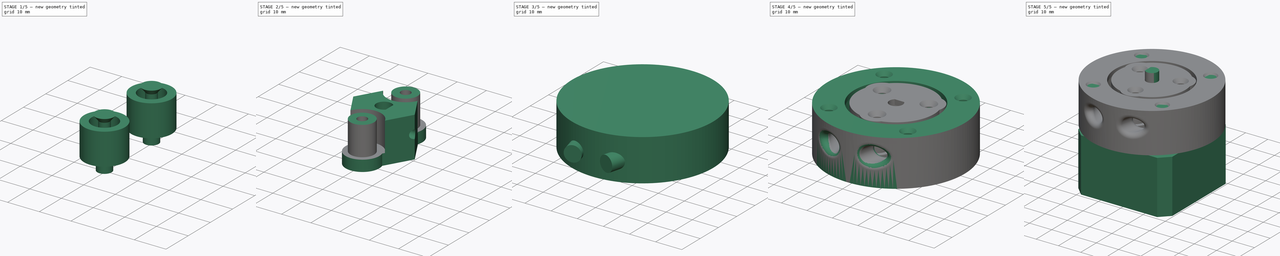
[diagram: build sequence overview — one tinted view per stage of 5, left to right]
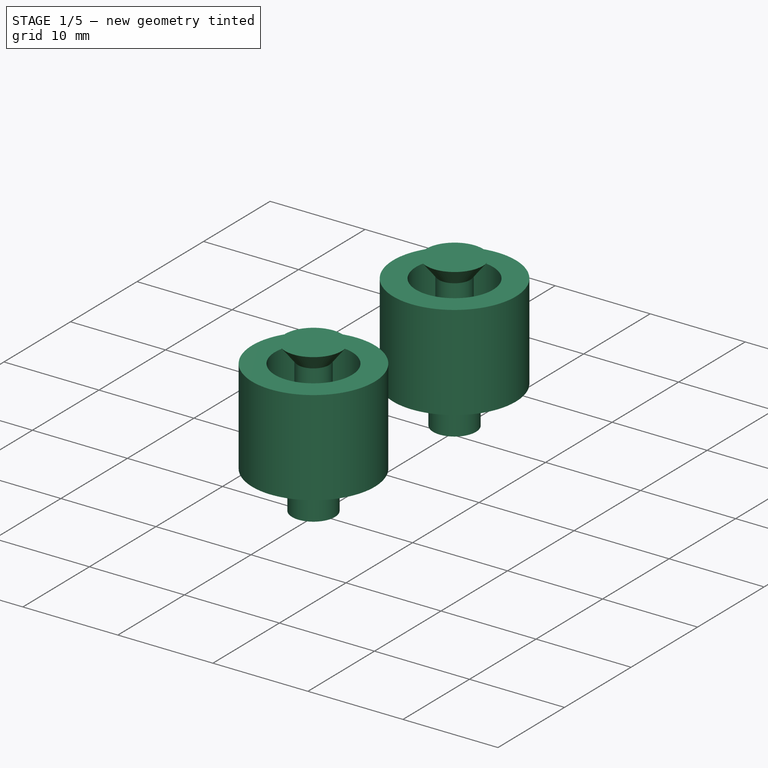
[diagram: stage 1 of 5 — iso view after this stage's code; geometry added in this stage tinted green]
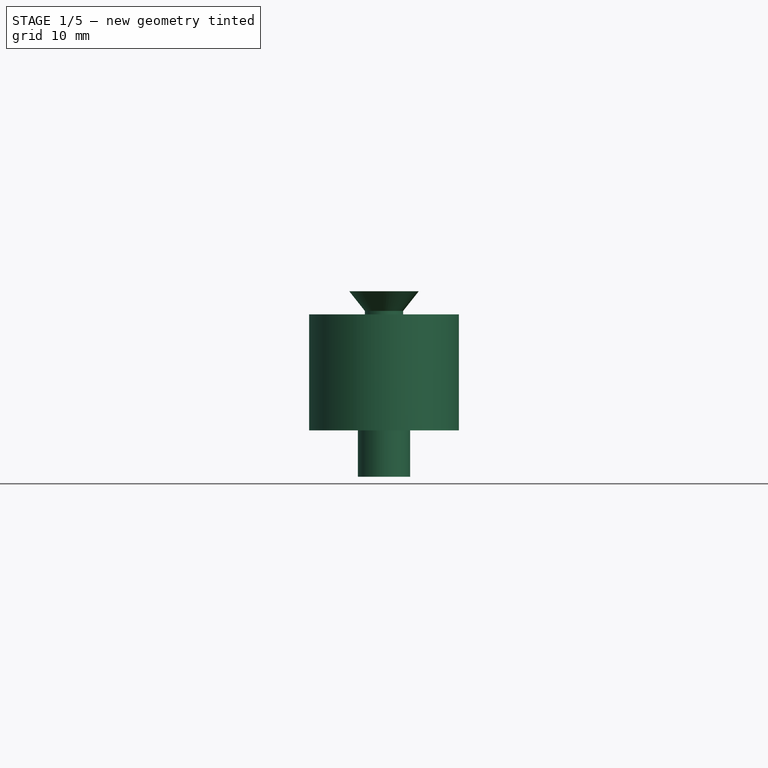
[diagram: stage 1 of 5 — front view after this stage's code; geometry added in this stage tinted green]
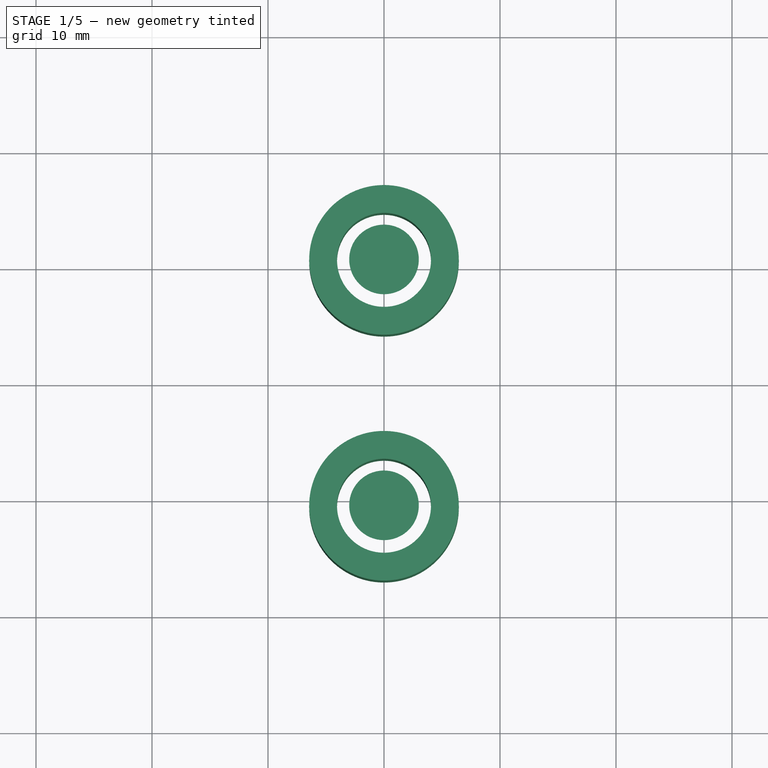
[diagram: stage 1 of 5 — top view after this stage's code; geometry added in this stage tinted green]
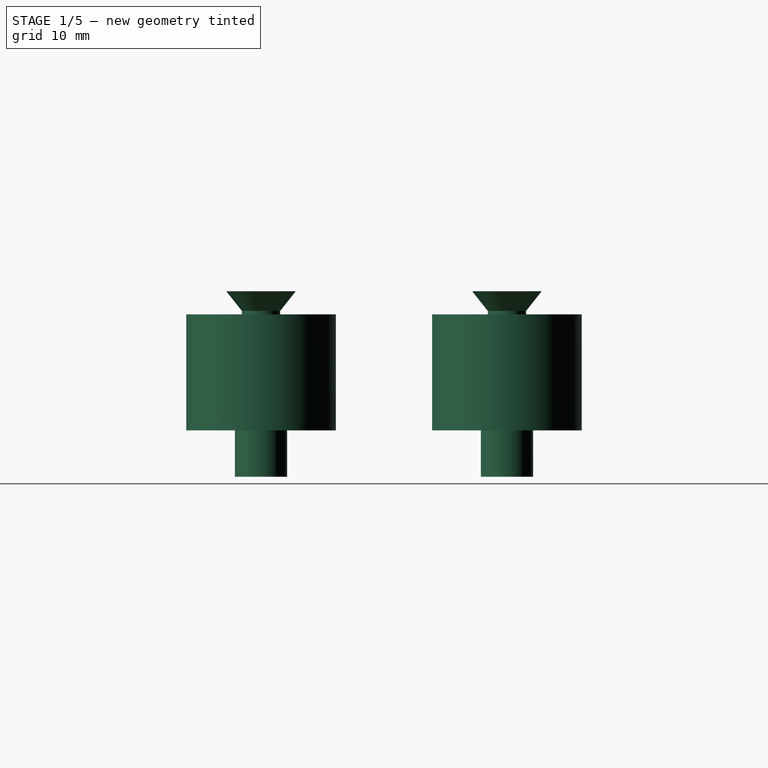
[diagram: stage 1 of 5 — right view after this stage's code; geometry added in this stage tinted green]
FCSTD DOCUMENT  (FreeCAD 0.19R24291 (Git))
Label: Peristaltic Pump 2 bearing
License: All rights reserved
LicenseURL: http://en.wikipedia.org/wiki/All_rights_reserved
objects: PartDesign::AdditiveCylinder×10, Part::Feature×10, PartDesign::Body×8, Part::Cut×6, PartDesign::SubtractiveCylinder×4, Sketcher::SketchObject×4, Part::MultiFuse×4, PartDesign::Pad×3, Part::FeaturePython×3, PartDesign::AdditiveCone×2, PartDesign::PolarPattern×2, PartDesign::AdditiveBox×1, PartDesign::Chamfer×1, PartDesign::MultiTransform×1, PartDesign::SubtractiveBox×1, Part::Cylinder×1, Part::Mirroring×1, Part::Fillet×1
note: 82 computed .brp shape members not serialized (recipe doc carries the construction recipe); baked Part::Feature solids carry a one-line shape summary decoded from their .brp

FEATURE [PartDesign::AdditiveCylinder] Cylinder003
  Angle = 360
  AttacherType = Attacher::AttachEngine3D
  AttachmentOffset = pos=(0,-10.6,0) rot=(0,0,1;0rad)
  Height = 10
  MapMode = 2
  Placement = pos=(0,-10.6,0) rot=(0,0,1;0rad)
  Radius = 6.45
  Support = -> [X_Axis001]
FEATURE [PartDesign::SubtractiveCylinder] Cylinder004
  Angle = 360
  AttacherType = Attacher::AttachEngine3D
  BaseFeature = -> Cylinder003
  Height = 10
  MapMode = 2
  Placement = pos=(0,-10.6,0) rot=(0,0,1;0rad)
  Radius = 4.05
  Support = -> [Cylinder003]
FEATURE [PartDesign::Body] Body
  Group = -> [Cylinder,Cylinder001,Box,Chamfer,Cylinder002,Cone,MultiTransform,PolarPattern,Box001]
  Origin = -> Origin
  Placement = pos=(0,0,1) rot=(0,0,-1;1.5708rad)
  Tip = -> Box001
FEATURE [Sketcher::SketchObject] Sketch003
  AttachmentOffset = pos=(0,0,15) rot=(0,0,1;0rad)
  FullyConstrained = true
  MapMode = 5
  Placement = pos=(0,0,15) rot=(0,0,1;0rad)
  Support = -> [XY_Plane004]
  sketch-geometry (9):
    g0: ArcOfCircle CenterX=0 CenterY=0 CenterZ=0 NormalX=0 NormalY=0 NormalZ=1 AngleXU=0 Radius=15 StartAngle=2.90419 EndAngle=4.4262
    g1: ArcOfCircle CenterX=0 CenterY=-10.5 CenterZ=0 NormalX=0 NormalY=0 NormalZ=1 AngleXU=0 Radius=5.75 StartAngle=3.88459 EndAngle=5.54018
    g2: ArcOfCircle CenterX=-9.09327 CenterY=5.25 CenterZ=0 NormalX=0 NormalY=0 NormalZ=1 AngleXU=0 Radius=5.75 StartAngle=1.7902 EndAngle=3.44579
    g3: ArcOfCircle CenterX=9.09327 CenterY=5.25 CenterZ=0 NormalX=0 NormalY=0 NormalZ=1 AngleXU=0 Radius=5.75 StartAngle=5.97899 EndAngle=7.63458
    g4: LineSegment StartX=-9.09327 StartY=5.25 StartZ=0 EndX=0 EndY=-10.5 EndZ=0
    g5: LineSegment StartX=0 StartY=-10.5 StartZ=0 EndX=9.09327 EndY=5.25 EndZ=0
    g6: LineSegment StartX=9.09327 StartY=5.25 StartZ=0 EndX=-9.09327 EndY=5.25 EndZ=0
    g7: ArcOfCircle CenterX=0 CenterY=0 CenterZ=0 NormalX=0 NormalY=0 NormalZ=1 AngleXU=0 Radius=15 StartAngle=0.809792 EndAngle=2.3318
    g8: ArcOfCircle CenterX=0 CenterY=0 CenterZ=0 NormalX=0 NormalY=0 NormalZ=1 AngleXU=0 Radius=15 StartAngle=4.99858 EndAngle=6.52059
  constraints (26):
    c: Coincident(g0,g-1)
    c: PointOnObject(g1,g-2)
    c: Equal(g1,g3)
    c: Equal(g3,g2)
    c: DistanceY(g1,g-1) = 10.5
    c: Distance(g-1,g3) = 10.5
    c: Symmetric(g2,g3,g-2)
    c: Coincident(g4,g2)
    c: Coincident(g4,g1)
    c: Coincident(g5,g4)
    c: Coincident(g5,g3)
    c: Coincident(g6,g5)
    c: Coincident(g6,g4)
    c: Equal(g4,g6)
    c: Radius(g0) = 15
    c: Radius(g3) = 5.75
    c: Coincident(g0,g2)
    c: Coincident(g7,g2)
    c: Equal(g0,g7)
    c: Coincident(g8,g3)
    c: Coincident(g7,g3)
    c: Coincident(g0,g7)
    c: Equal(g0,g8)
    c: Coincident(g0,g1)
    c: Coincident(g8,g1)
    c: Coincident(g0,g8)
FEATURE [PartDesign::Pad] Pad002
  Direction = (1,1,1)
  Length = 2
  Length2 = 100
  Profile = -> Sketch003
  Type = 0
FEATURE [PartDesign::AdditiveCylinder] Cylinder011
  Angle = 360
  AttacherType = Attacher::AttachEngine3D
  AttachmentOffset = pos=(0,-10.6,-15.7) rot=(0,0,1;0rad)
  Height = 14
  MapMode = 5
  Placement = pos=(0,-10.6,1.3) rot=(0,0,1;0rad)
  Radius = 1.65
  Support = -> [Pad002]
FEATURE [PartDesign::AdditiveCone] Cone001
  Angle = 360
  AttacherType = Attacher::AttachEngine3D
  BaseFeature = -> Cylinder011
  Height = 1.7
  MapMode = 5
  Placement = pos=(0,-10.6,15.3) rot=(0,0,1;0rad)
  Radius1 = 1.65
  Radius2 = 3
  Support = -> [Cylinder011]
FEATURE [Part::Feature] Body001012002
  Placement = pos=(0,0,5) rot=(0,0,1;0rad)
  shape: bbox 12.25 x 12.25 x 10 mm, 4 faces (baked)
FEATURE [Part::FeaturePython] Array  label="Bearings"  # Draft array (typed FeaturePython)
  Angle = 360
  ArrayType = 1
  Axis = (0,0,1)
  Base = -> Body001012002
  Center = (0,0,0)
  Count = 3
  ExpandArray = false
  Fuse = false
  IntervalAxis = (0,0,0)
  IntervalX = (50,0,0)
  IntervalY = (0,50,0)
  IntervalZ = (0,0,50)
  NumberCircles = 3
  NumberPolar = 3
  NumberX = 2
  NumberY = 2
  NumberZ = 1
  PlacementList = 3 placements: [(0,0,5),(0,0,5),(0,0,5)]
  RadialDistance = 50
  ScaleList = (3) [(1,1,1),(1,1,1),(1,1,1)]
  Symmetry = 1
  TangentialDistance = 25
FEATURE [PartDesign::AdditiveCylinder] Cylinder013
  Angle = 360
  AttacherType = Attacher::AttachEngine3D
  AttachmentOffset = pos=(0,0,-0.3) rot=(0,0,1;0rad)
  BaseFeature = -> Cone001
  Height = 4.75
  MapMode = 11
  Placement = pos=(0,-10.6,1) rot=(0,0,1;1.5708rad)
  Radius = 2.25
  Support = -> [Cone001]
FEATURE [PartDesign::Body] Body001012003
  Group = -> [Cylinder014,Cylinder015]
  Origin = -> Origin007
  Placement = pos=(0,0,0) rot=(0,0,1;4.71239rad)
  Tip = -> Cylinder015
FEATURE [Part::MultiFuse] Fusion001
  Refine = true
  Shapes = -> [Body001,Body001013]
FEATURE [Part::FeaturePython] Array003  # Draft array (typed FeaturePython)
  Angle = 360
  ArrayType = 1
  Axis = (0,0,1)
  Base = -> Fusion001
  Center = (0,0,0)
  Count = 2
  ExpandArray = false
  Fuse = false
  IntervalAxis = (0,0,0)
  IntervalX = (50,0,0)
  IntervalY = (0,50,0)
  IntervalZ = (0,0,50)
  NumberCircles = 3
  NumberPolar = 2
  NumberX = 2
  NumberY = 2
  NumberZ = 1
  PlacementList = 2 placements: [(0,0,0),(0,0,0)]
  RadialDistance = 50
  ScaleList = (2) [(1,1,1),(1,1,1)]
  Symmetry = 1
  TangentialDistance = 25
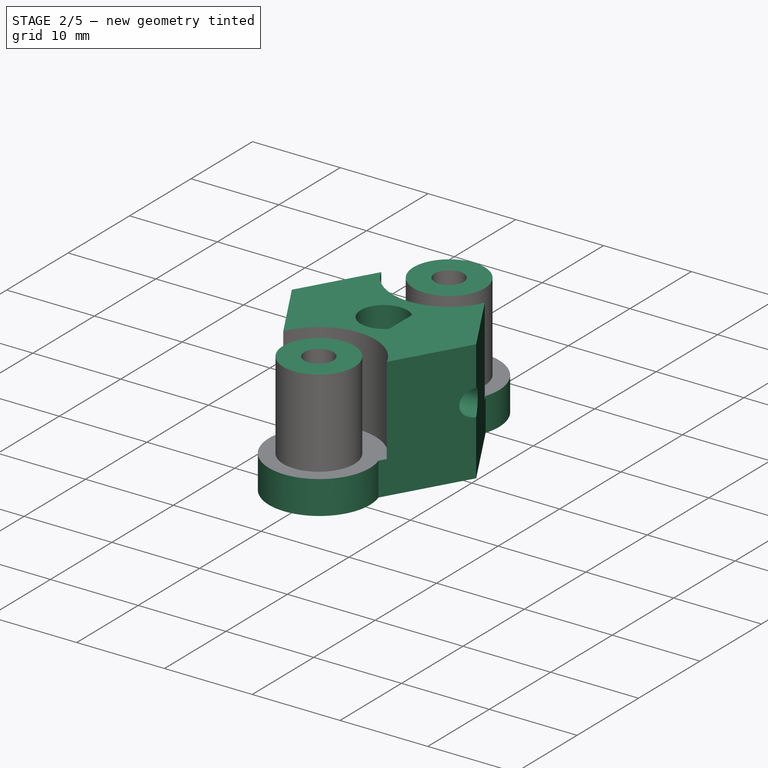
[diagram: stage 2 of 5 — iso view after this stage's code; geometry added in this stage tinted green]
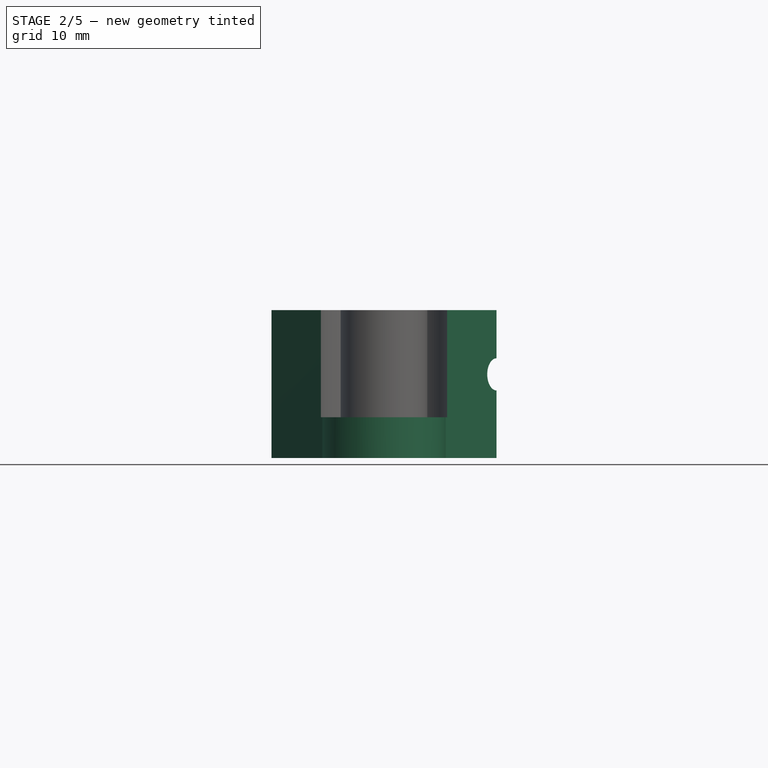
[diagram: stage 2 of 5 — front view after this stage's code; geometry added in this stage tinted green]
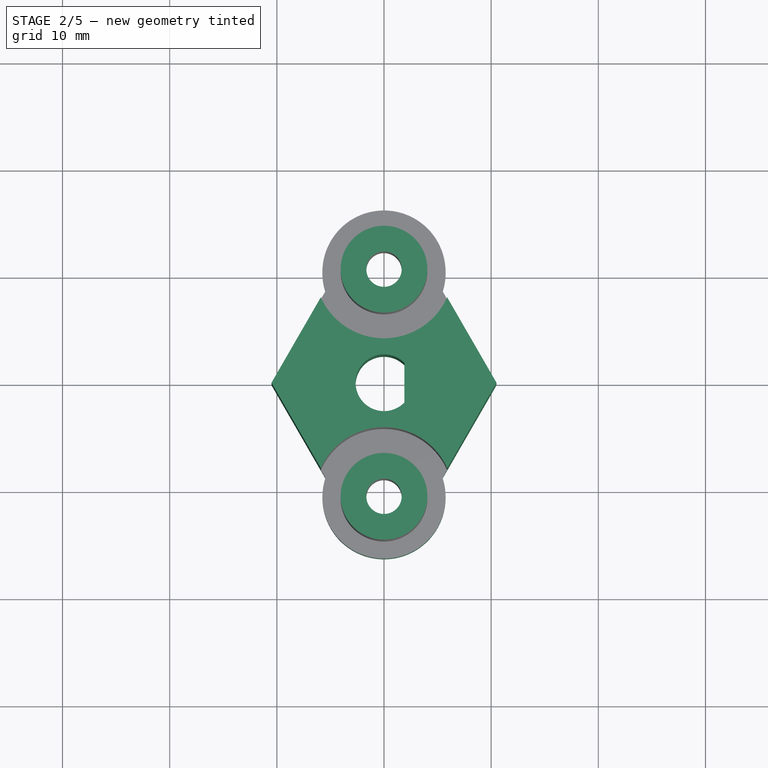
[diagram: stage 2 of 5 — top view after this stage's code; geometry added in this stage tinted green]
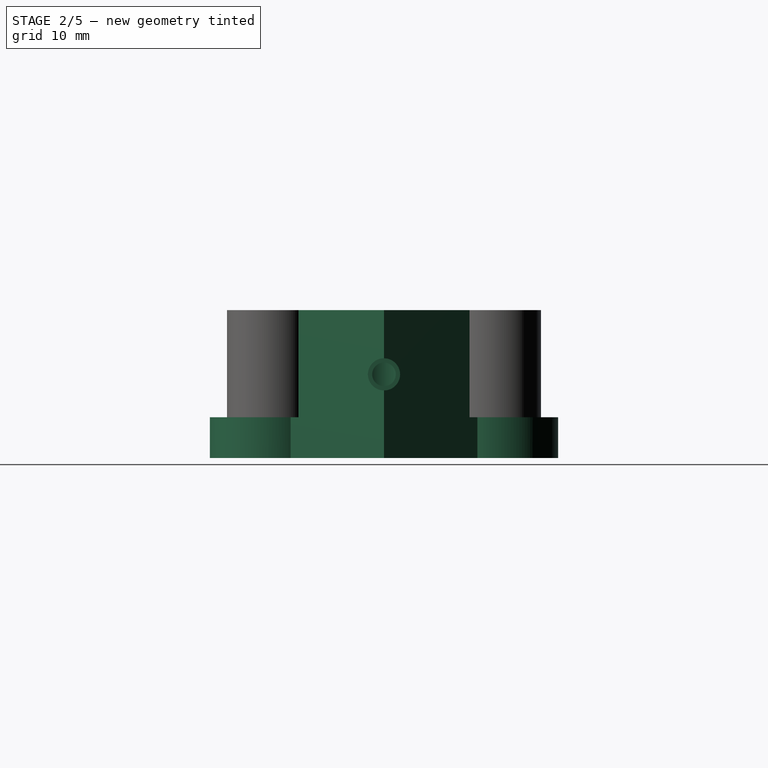
[diagram: stage 2 of 5 — right view after this stage's code; geometry added in this stage tinted green]
FEATURE [PartDesign::Body] Body001002
  Group = -> [Cylinder005,Cylinder006,Cylinder007]
  Origin = -> Origin002
  Placement = pos=(0,0,-4) rot=(0,0,1;0rad)
  Tip = -> Cylinder007
FEATURE [Sketcher::SketchObject] Sketch001
  AttachmentOffset = pos=(0,0,-2) rot=(0,0,1;0rad)
  FullyConstrained = false
  MapMode = 5
  Placement = pos=(0,0,-2) rot=(0,0,1;0rad)
  Support = -> [XY_Plane003]
  sketch-geometry (9):
    g0: LineSegment StartX=-5.25 StartY=9.09327 StartZ=0 EndX=5.25 EndY=9.09327 EndZ=0
    g1: LineSegment StartX=5.25 StartY=-9.09327 StartZ=0 EndX=10.5 EndY=-1.9149e-12 EndZ=0
    g2: LineSegment StartX=-10.5 StartY=-1.9141e-12 StartZ=0 EndX=-5.25 EndY=-9.09327 EndZ=0
    g3: LineSegment StartX=0 StartY=-10 StartZ=0 EndX=0 EndY=0 EndZ=0
    g4: LineSegment StartX=8.66025 StartY=5 StartZ=0 EndX=0 EndY=0 EndZ=0
    g5: LineSegment StartX=0 StartY=0 StartZ=0 EndX=-8.66025 EndY=5 EndZ=0
    g6: LineSegment StartX=-5.25 StartY=-9.09327 StartZ=0 EndX=5.25 EndY=-9.09327 EndZ=0
    g7: LineSegment StartX=-10.5 StartY=-1.9141e-12 StartZ=0 EndX=-5.25 EndY=9.09327 EndZ=0
    g8: LineSegment StartX=5.25 StartY=9.09327 StartZ=0 EndX=10.5 EndY=-1.9149e-12 EndZ=0
  constraints (22):
    c: Horizontal(g0)
    c: Coincident(g3,g-1)
    c: Vertical(g3)
    c: Coincident(g4,g-1)
    c: Coincident(g5,g-1)
    c: Coincident(g2,g7)
    c: Coincident(g0,g7)
    c: Coincident(g0,g8)
    c: Coincident(g1,g8)
    c: Coincident(g1,g6)
    c: Coincident(g2,g6)
    c: Equal(g7,g8)
    c: Equal(g8,g6)
    c: Equal(g1,g0)
    c: Equal(g3,g4)
    c: Equal(g4,g5)
    c: DistanceY(g3,g3) = 10
    c: Angle(g1,g2) = 1.0472
    c: Symmetric(g2,g0,g-1)
    c: Symmetric(g1,g0,g-1)
    c: Symmetric(g2,g1,g3)
    c: DistanceX(g6,g6) = 10.5
FEATURE [PartDesign::Pad] Pad
  Direction = (1,1,1)
  Length = 13.8
  Length2 = 100
  Profile = -> Sketch001
  Reversed = true
  Type = 0
FEATURE [Sketcher::SketchObject] Sketch002
  AttachmentOffset = pos=(0,0,-2) rot=(0,0,1;0rad)
  FullyConstrained = true
  MapMode = 5
  Placement = pos=(0,0,-2) rot=(0,0,1;0rad)
  Support = -> [XY_Plane003]
  sketch-geometry (2):
    g0: GeomPoint X=0 Y=-10.5 Z=0
    g1: Circle CenterX=0 CenterY=-10.5 CenterZ=0 NormalX=0 NormalY=0 NormalZ=1 AngleXU=0 Radius=5.75
  constraints (4):
    c: PointOnObject(g0,g-2)
    c: Coincident(g1,g0)
    c: DistanceY(g0,g-1) = 10.5
    c: Radius(g1) = 5.75
FEATURE [PartDesign::Pad] Pad001
  BaseFeature = -> Pad
  Direction = (1,1,1)
  Length = 13.8
  Length2 = 100
  Profile = -> Sketch002
  Reversed = true
  Type = 0
FEATURE [PartDesign::PolarPattern] PolarPattern001
  Angle = 360
  Axis = -> Sketch002 [N_Axis]
  BaseFeature = -> Pad001
  Occurrences = 2
  Originals = -> [Pad001]
  Refine = true
FEATURE [PartDesign::Body] Body001013
  Group = -> [Cylinder011,Cone001,Cylinder013]
  Origin = -> Origin006
  Tip = -> Cylinder013
FEATURE [PartDesign::AdditiveCylinder] Cylinder014
  Angle = 360
  AttacherType = Attacher::AttachEngine3D
  AttachmentOffset = pos=(0,9,2.5) rot=(0,0,1;0rad)
  Height = 8
  MapMode = 5
  Placement = pos=(0,2.5,9) rot=(0,0.707107,0.707107;3.14159rad)
  Radius = 1.5
  Support = -> [XZ_Plane007]
FEATURE [PartDesign::AdditiveCylinder] Cylinder015
  Angle = 360
  AttacherType = Attacher::AttachEngine3D
  BaseFeature = -> Cylinder014
  Height = 0.6
  MapMode = 5
  Placement = pos=(0,2.5,9) rot=(0,0.707107,-0.707107;3.14159rad)
  Radius = 1.1
  Support = -> [Cylinder014]
FEATURE [Part::Cut] Cut
  Base = -> Body001003
  Refine = true
  Tool = -> Array
FEATURE [Part::MultiFuse] Fusion004
  Shapes = -> [Body001013004,Array003,Body001012003]
FEATURE [Part::Cut] Cut002002
  Base = -> Cut
  Tool = -> Fusion004
FEATURE [Part::Feature] Cut010001  label="Rotor Cover001"
  shape: bbox 30 x 31.25 x 2 mm, 17 faces (baked)
FEATURE [Part::Feature] Cut002002001
  Placement = pos=(0,0,-2.2) rot=(0,0,1;0rad)
  shape: bbox 29.69 x 27.25 x 13.8 mm, 35 faces (baked)
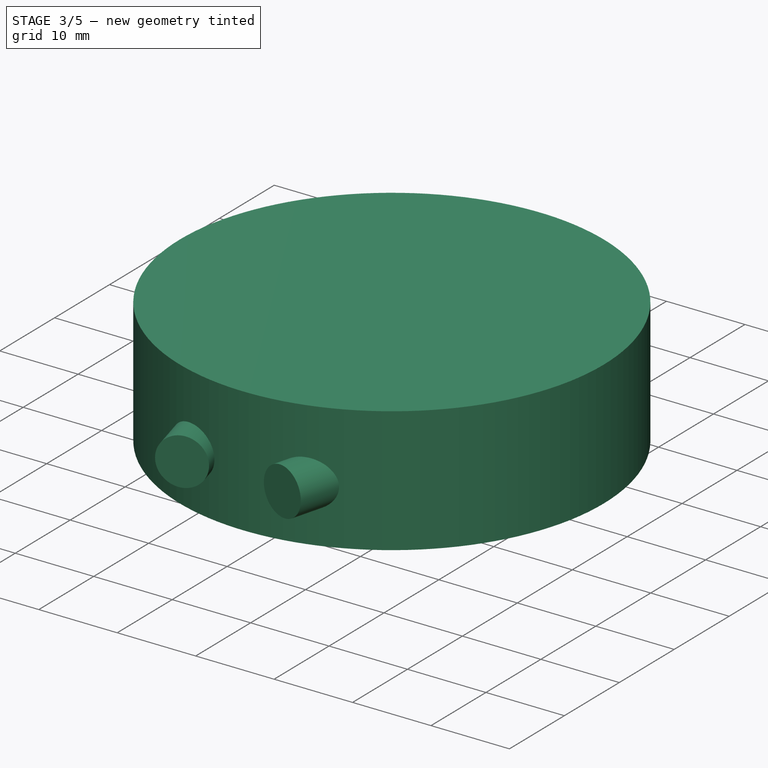
[diagram: stage 3 of 5 — iso view after this stage's code; geometry added in this stage tinted green]
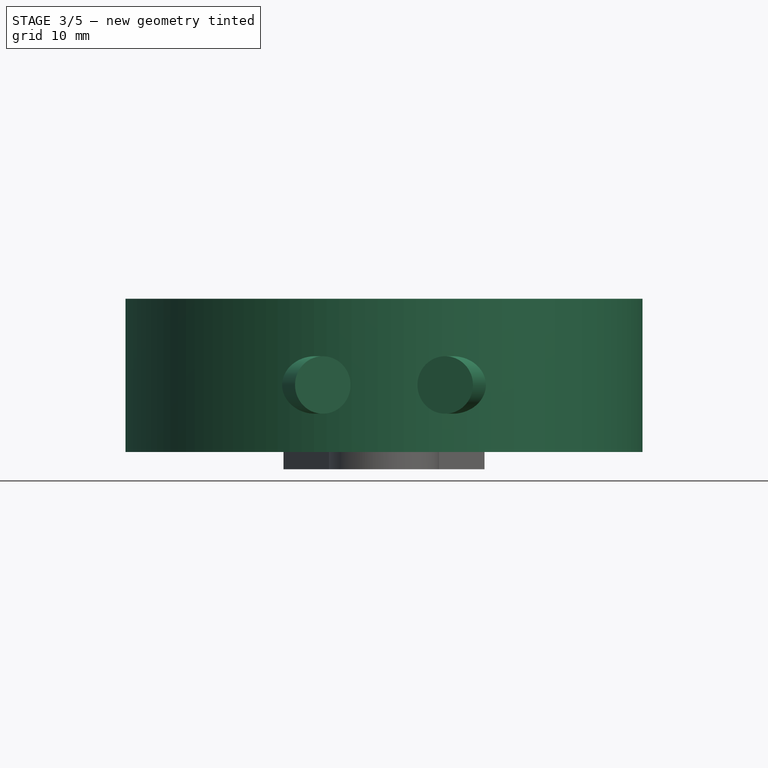
[diagram: stage 3 of 5 — front view after this stage's code; geometry added in this stage tinted green]
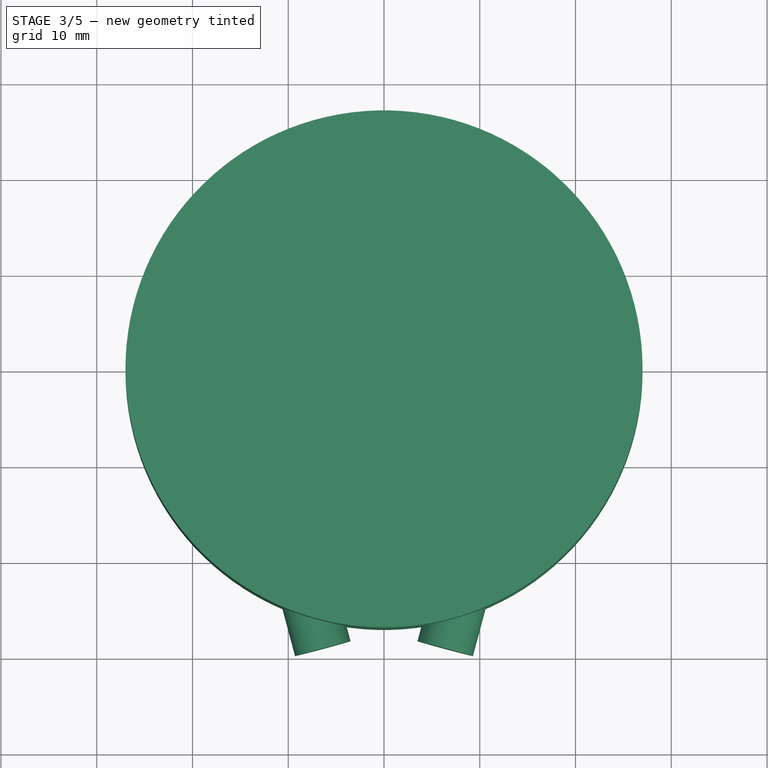
[diagram: stage 3 of 5 — top view after this stage's code; geometry added in this stage tinted green]
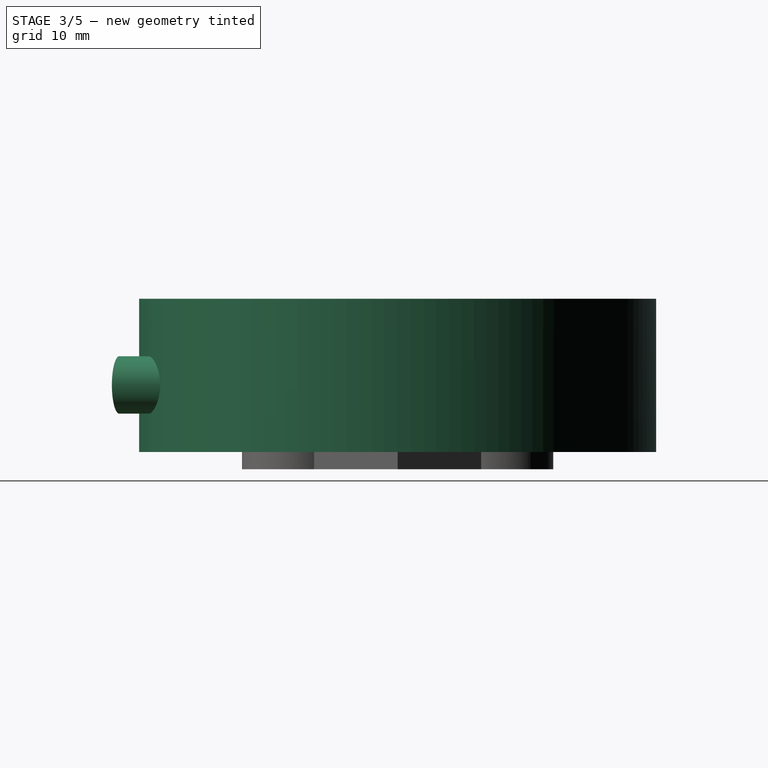
[diagram: stage 3 of 5 — right view after this stage's code; geometry added in this stage tinted green]
FEATURE [PartDesign::Body] Body001
  Group = -> [Cylinder003,Cylinder004]
  Origin = -> Origin001
  Placement = pos=(0,0,5) rot=(0,0,1;0rad)
  Tip = -> Cylinder004
FEATURE [Sketcher::SketchObject] Sketch
  FullyConstrained = true
  Placement = pos=(0,0,5) rot=(0,0,1;0rad)
  sketch-geometry (2):
    g0: Circle CenterX=0 CenterY=0 CenterZ=0 NormalX=0 NormalY=0 NormalZ=1 AngleXU=0 Radius=20.5
    g1: Circle CenterX=0 CenterY=0 CenterZ=0 NormalX=0 NormalY=0 NormalZ=1 AngleXU=0 Radius=18.75
  constraints (4):
    c: Coincident(g0,g-1)
    c: Radius(g0) = 20.5
    c: Coincident(g1,g-1)
    c: Radius(g1) = 18.75
FEATURE [PartDesign::AdditiveCylinder] Cylinder005
  Angle = 360
  AttacherType = Attacher::AttachEngine3D
  AttachmentOffset = pos=(0,0,3) rot=(0,0,1;0rad)
  Height = 16
  MapMode = 2
  Placement = pos=(0,0,3) rot=(0,0,1;0rad)
  Radius = 27
FEATURE [Part::Cylinder] Cylinder012
  Angle = 360
  AttacherType = Attacher::AttachEngine3D
  Height = 20
  Placement = pos=(11.568,-9.74832,10) rot=(0.983106,-0.129428,-0.129428;1.58783rad)
  Radius = 3
FEATURE [Part::Mirroring] Part__Mirroring  label="Cylinder012 (Mirror #1)"
  Base = (2.86102e-06,-21,10)
  Normal = (1,0,-1.19209e-07)
  Source = -> Cylinder012
FEATURE [Part::MultiFuse] Fusion
  Shapes = -> [Part__Mirroring,Cylinder012]
FEATURE [Part::Feature] Body001013001
  shape: bbox 6 x 6 x 14 mm, 6 faces (baked)
FEATURE [Part::FeaturePython] Array002  # Draft array (typed FeaturePython)
  Angle = 360
  ArrayType = 1
  Axis = (0,0,1)
  Base = -> Body001013001
  Center = (0,0,0)
  Count = 3
  ExpandArray = false
  Fuse = false
  IntervalAxis = (0,0,0)
  IntervalX = (50,0,0)
  IntervalY = (0,50,0)
  IntervalZ = (0,0,50)
  NumberCircles = 3
  NumberPolar = 3
  NumberX = 2
  NumberY = 2
  NumberZ = 1
  PlacementList = 3 placements: [(0,0,0),(0,0,0),(0,0,0)]
  RadialDistance = 50
  ScaleList = (3) [(1,1,1),(1,1,1),(1,1,1)]
  Symmetry = 1
  TangentialDistance = 25
FEATURE [Part::Feature] Cut002001  label="Housing Cover001"
  shape: bbox 54 x 54 x 2 mm, 12 faces (baked)
FEATURE [Part::Feature] Fillet001  label="Housing001"
  shape: bbox 54 x 54 x 16 mm, 16 faces (baked)
FEATURE [Part::Feature] Body001013004
  Placement = pos=(0,0,1) rot=(0,0,1;3.14159rad)
  shape: bbox 42.2 x 42.2 x 47 mm, 28 faces (baked)
FEATURE [Part::Feature] Body001013005
  Placement = pos=(0,0,1) rot=(0,0,-1;1.5708rad)
  shape: bbox 42.2 x 42.2 x 47 mm, 28 faces (baked)
FEATURE [Part::MultiFuse] Fusion003
  Shapes = -> [Array002,Body001013005]
FEATURE [Part::Cut] Cut010  label="Rotor Cover"
  Base = -> Body001008
  Tool = -> Fusion003
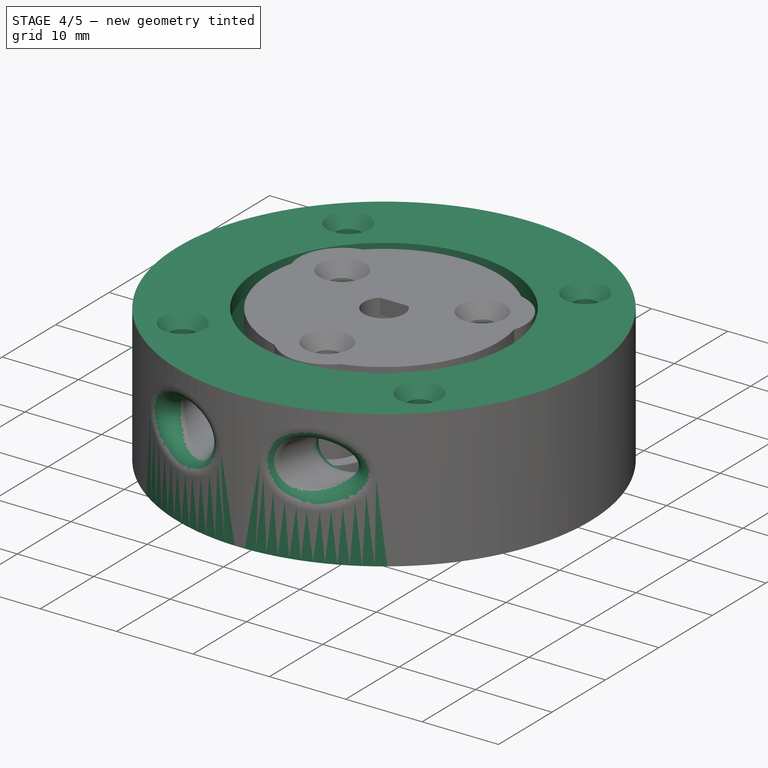
[diagram: stage 4 of 5 — iso view after this stage's code; geometry added in this stage tinted green]
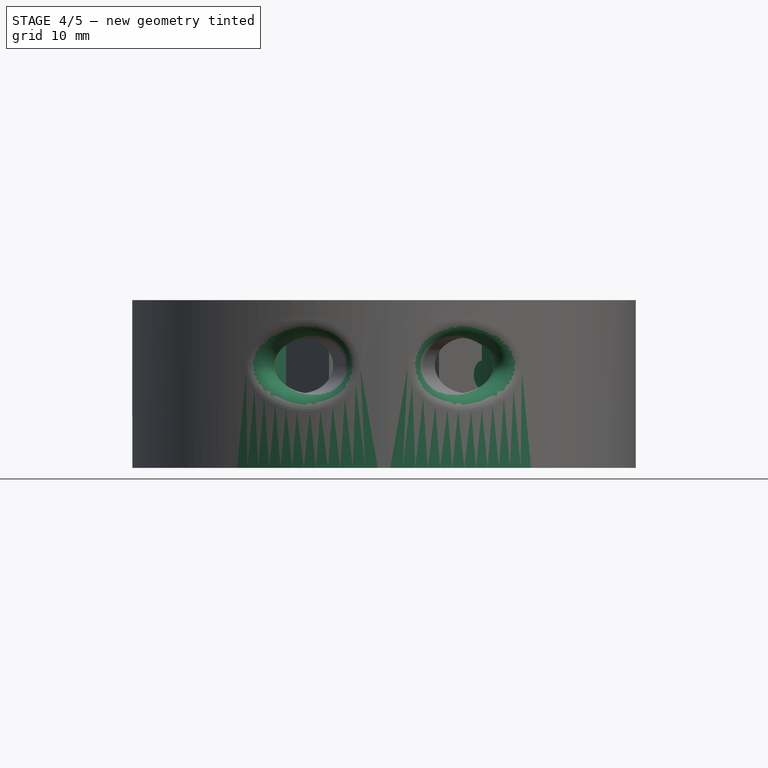
[diagram: stage 4 of 5 — front view after this stage's code; geometry added in this stage tinted green]
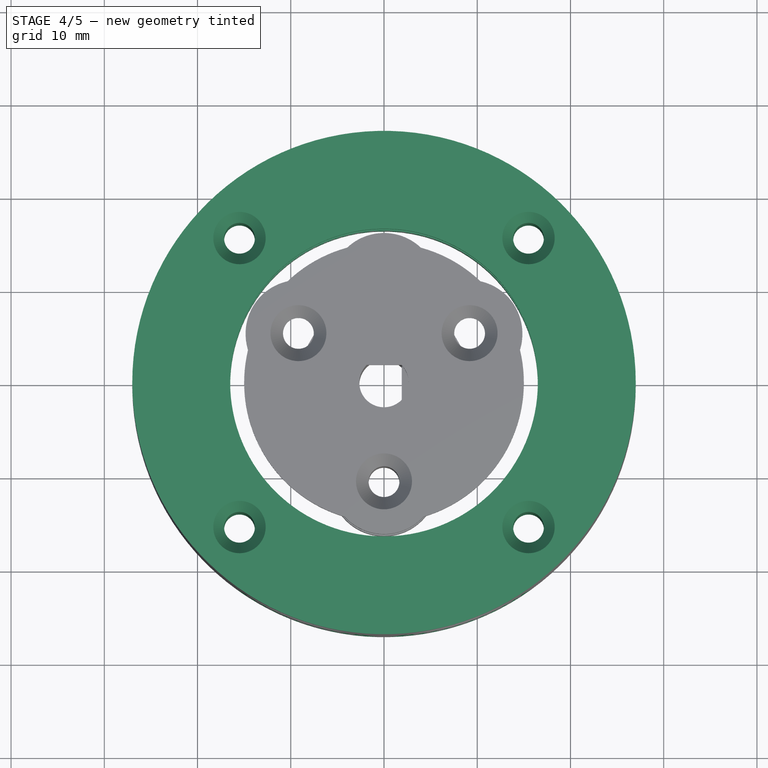
[diagram: stage 4 of 5 — top view after this stage's code; geometry added in this stage tinted green]
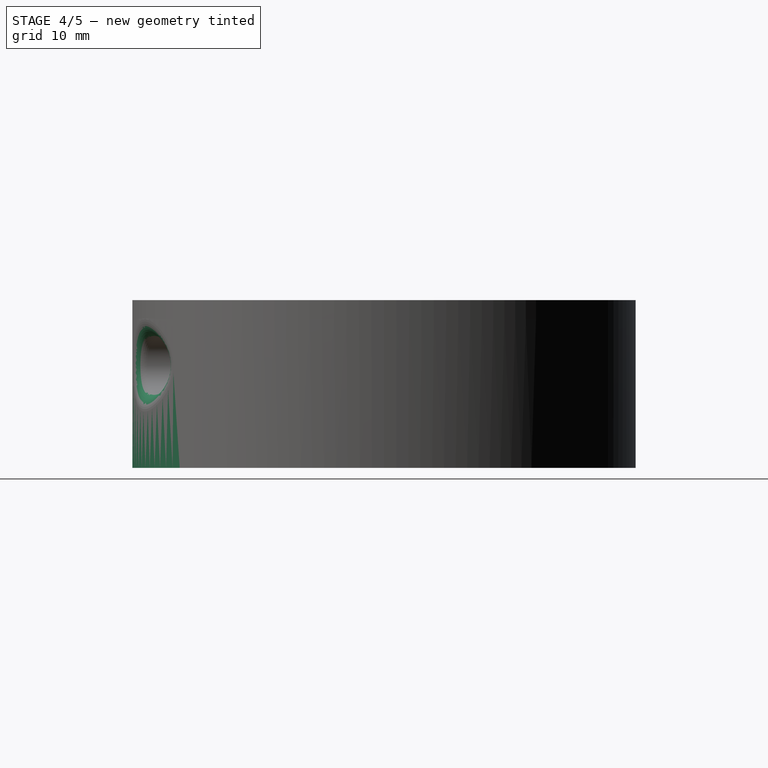
[diagram: stage 4 of 5 — right view after this stage's code; geometry added in this stage tinted green]
FEATURE [PartDesign::SubtractiveCylinder] Cylinder006
  Angle = 360
  AttacherType = Attacher::AttachEngine3D
  BaseFeature = -> Cylinder005
  Height = 18
  MapMode = 2
  Placement = pos=(0,0,3) rot=(0,0,1;0rad)
  Radius = 16.5
  Support = -> [Cylinder005]
FEATURE [PartDesign::SubtractiveCylinder] Cylinder007
  Angle = 360
  AttacherType = Attacher::AttachEngine3D
  AttachmentOffset = pos=(0,0,6) rot=(0,0,1;0rad)
  BaseFeature = -> Cylinder006
  Height = 15
  MapMode = 2
  Placement = pos=(0,0,9) rot=(0,0,1;0rad)
  Radius = 18.975
  Support = -> [Cylinder006]
FEATURE [PartDesign::Body] Body001008
  Group = -> [Sketch003,Pad002]
  Origin = -> Origin004
  Tip = -> Pad002
FEATURE [PartDesign::AdditiveCylinder] Cylinder008
  Angle = 360
  AttacherType = Attacher::AttachEngine3D
  AttachmentOffset = pos=(0,0,3) rot=(0,0,1;0rad)
  Height = 2
  MapMode = 2
  Placement = pos=(0,0,3) rot=(0,0,1;0rad)
  Radius = 27
FEATURE [PartDesign::SubtractiveCylinder] Cylinder010
  Angle = 360
  AttacherType = Attacher::AttachEngine3D
  BaseFeature = -> Cylinder008
  Height = 2
  MapMode = 2
  Placement = pos=(0,0,3) rot=(0,0,1;0rad)
  Radius = 16.5
  Support = -> [Cylinder008]
FEATURE [PartDesign::Body] Body001009
  Group = -> [Cylinder008,Cylinder010]
  Origin = -> Origin005
  Placement = pos=(0,0,12) rot=(0,0,1;0rad)
  Tip = -> Cylinder010
FEATURE [Part::Feature] Body001010  label="Motor"
  Placement = pos=(0,0,1) rot=(0,0,1;0rad)
  shape: bbox 42.2 x 42.2 x 47 mm, 28 faces (baked)
FEATURE [Part::Cut] Cut001
  Base = -> Body001002
  Tool = -> Body001010
FEATURE [Part::Feature] Body001011
  Placement = pos=(0,0,1) rot=(0,0,1;0rad)
  shape: bbox 42.2 x 42.2 x 47 mm, 28 faces (baked)
FEATURE [Part::Cut] Cut002  label="Housing Cover"
  Base = -> Body001009
  Refine = true
  Tool = -> Body001011
FEATURE [Part::Cut] Cut007
  Base = -> Cut001
  Refine = true
  Tool = -> Fusion
FEATURE [Part::Fillet] Fillet  label="Housing"
  Base = -> Cut007
  Edges = 4 edges r=2: [Edge12,Edge13,Edge20,Edge22]
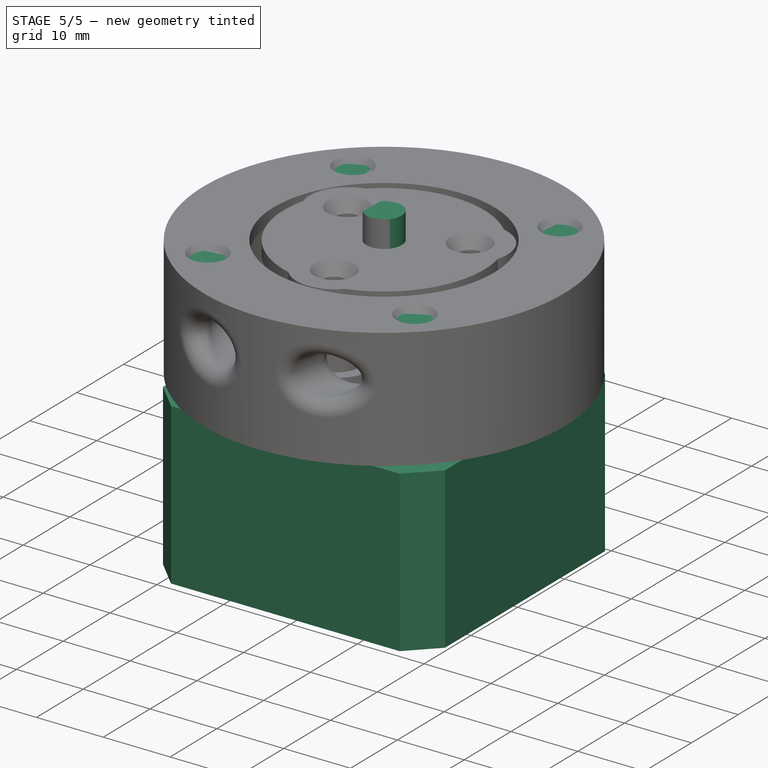
[diagram: stage 5 of 5 — iso view after this stage's code; geometry added in this stage tinted green]
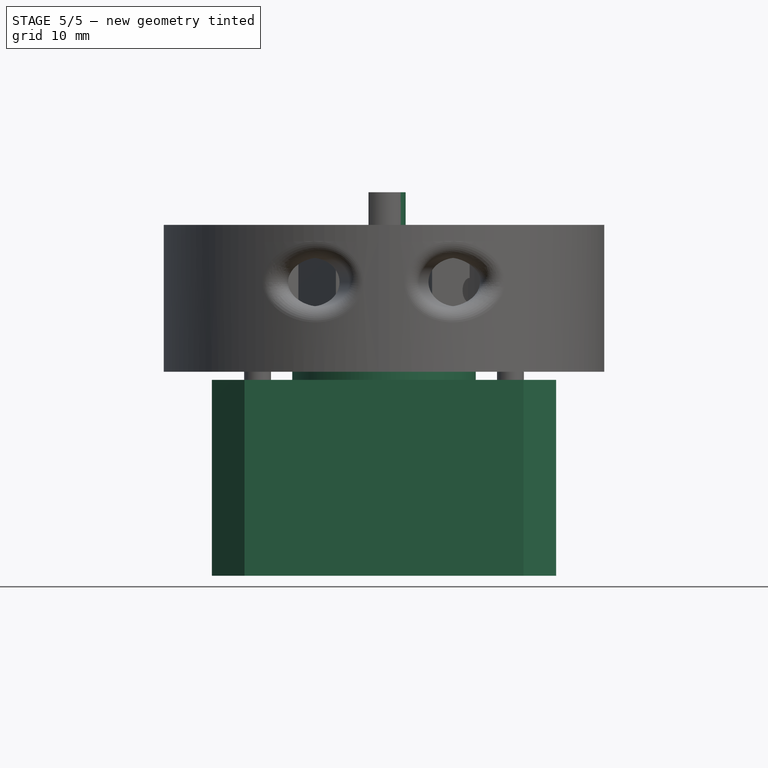
[diagram: stage 5 of 5 — front view after this stage's code; geometry added in this stage tinted green]
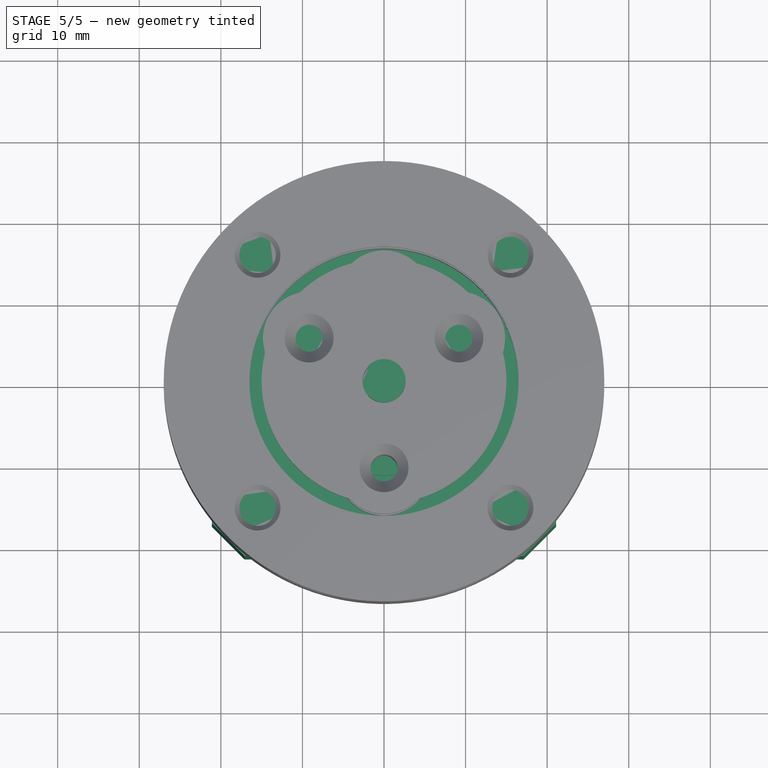
[diagram: stage 5 of 5 — top view after this stage's code; geometry added in this stage tinted green]
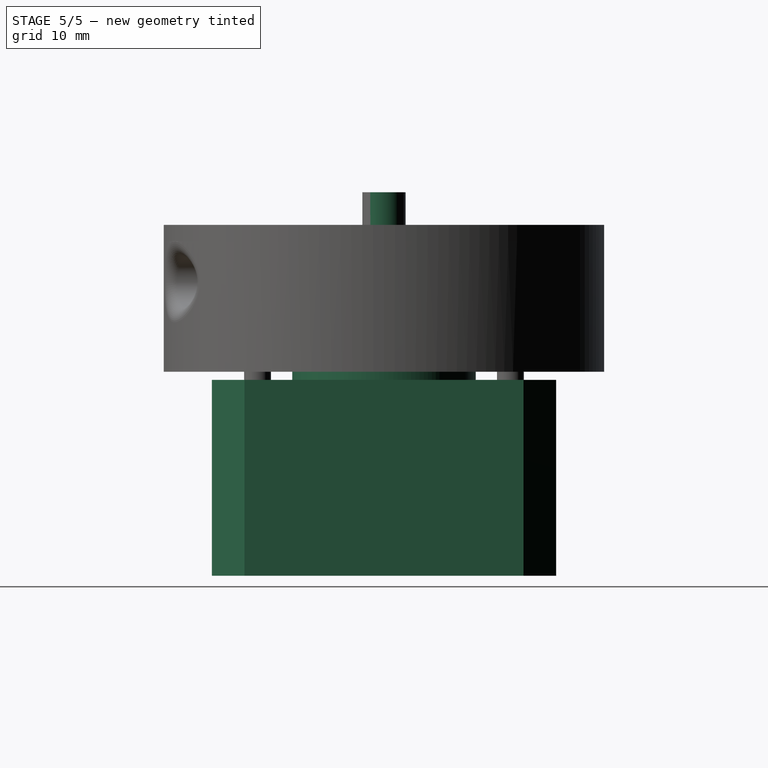
[diagram: stage 5 of 5 — right view after this stage's code; geometry added in this stage tinted green]
FEATURE [PartDesign::AdditiveCylinder] Cylinder
  Angle = 360
  AttacherType = Attacher::AttachEngine3D
  Height = 21
  Radius = 2.65
FEATURE [PartDesign::AdditiveCylinder] Cylinder001
  Angle = 360
  AttacherType = Attacher::AttachEngine3D
  BaseFeature = -> Cylinder
  Height = 2
  MapMode = 5
  Placement = pos=(0,0,0) rot=(1,0,0;3.14159rad)
  Radius = 11.25
  Support = -> [Cylinder]
FEATURE [PartDesign::AdditiveBox] Box
  AttacherType = Attacher::AttachEngine3D
  AttachmentOffset = pos=(-21.1,-21.1,0) rot=(0,0,1;0rad)
  BaseFeature = -> Cylinder001
  Height = 24
  Length = 42.2
  MapMode = 5
  Placement = pos=(-21.1,21.1,-2) rot=(1,0,0;3.14159rad)
  Support = -> [Cylinder001]
  Width = 42.2
FEATURE [PartDesign::Chamfer] Chamfer
  Angle = 45
  Base = -> Box [Edge1,Edge3,Edge11,Edge6]
  BaseFeature = -> Box
  ChamferType = 0
  FlipDirection = false
  Placement = pos=(-21.1,21.1,-2) rot=(1,0,0;3.14159rad)
  Size = 4
  Size2 = 1
  SupportTransform = false
FEATURE [PartDesign::AdditiveCylinder] Cylinder002
  Angle = 360
  AttacherType = Attacher::AttachEngine3D
  AttachmentOffset = pos=(-15.5,-15.5,-2) rot=(0,0,1;0rad)
  BaseFeature = -> Chamfer
  Height = 16.5
  MapMode = 5
  Placement = pos=(-15.5,-15.5,-2) rot=(0,0,1;0rad)
  Radius = 1.65
  Support = -> [XY_Plane]
FEATURE [PartDesign::AdditiveCone] Cone
  Angle = 360
  AttacherType = Attacher::AttachEngine3D
  BaseFeature = -> Cylinder002
  Height = 1.75
  MapMode = 5
  Placement = pos=(-15.5,-15.5,14.5) rot=(0,0,1;0rad)
  Radius1 = 1.65
  Radius2 = 3
  Support = -> [Cylinder002]
FEATURE [PartDesign::PolarPattern] PolarPattern
  Angle = 360
  Axis = -> Z_Axis
  Occurrences = 4
  Placement = pos=(-15.5,-15.5,14.5) rot=(0,0,1;0rad)
FEATURE [PartDesign::MultiTransform] MultiTransform
  BaseFeature = -> Cone
  Originals = -> [Cylinder002,Cone]
  Placement = pos=(-15.5,-15.5,14.5) rot=(0,0,1;0rad)
  Transformations = -> [PolarPattern]
FEATURE [PartDesign::Body] Body001003
  Group = -> [Sketch001,Pad,Sketch002,Pad001,PolarPattern001]
  Origin = -> Origin003
  Placement = pos=(0,0,17) rot=(0,0,1;0rad)
  Tip = -> PolarPattern001
FEATURE [PartDesign::SubtractiveBox] Box001
  AttacherType = Attacher::AttachEngine3D
  AttachmentOffset = pos=(3.15,-4,-2.5) rot=(0,0,1;0rad)
  BaseFeature = -> MultiTransform
  Height = 5
  Length = 17.85
  MapMode = 2
  Placement = pos=(-4,-2.5,3.15) rot=(0.57735,0.57735,0.57735;4.18879rad)
  Support = -> [Z_Axis]
  Width = 2.1
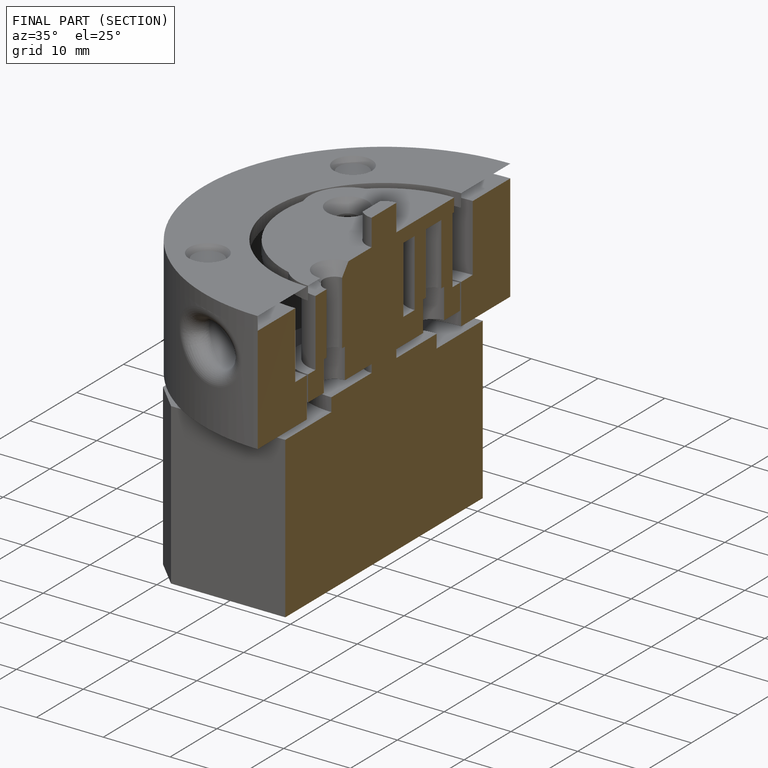
[diagram: finished part — half-section view (interior)]
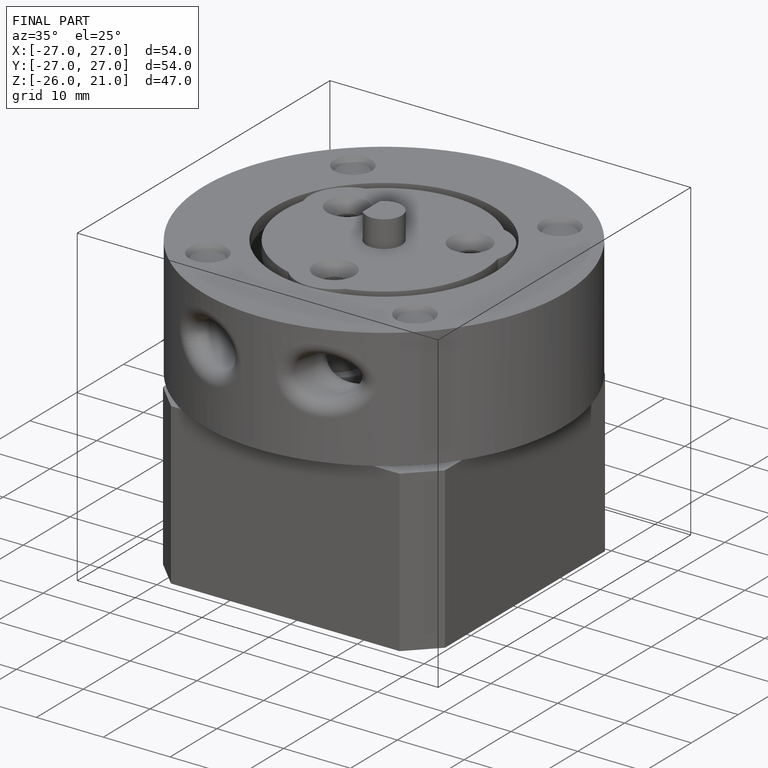
[diagram: finished part — iso view with bounding-box wireframe]
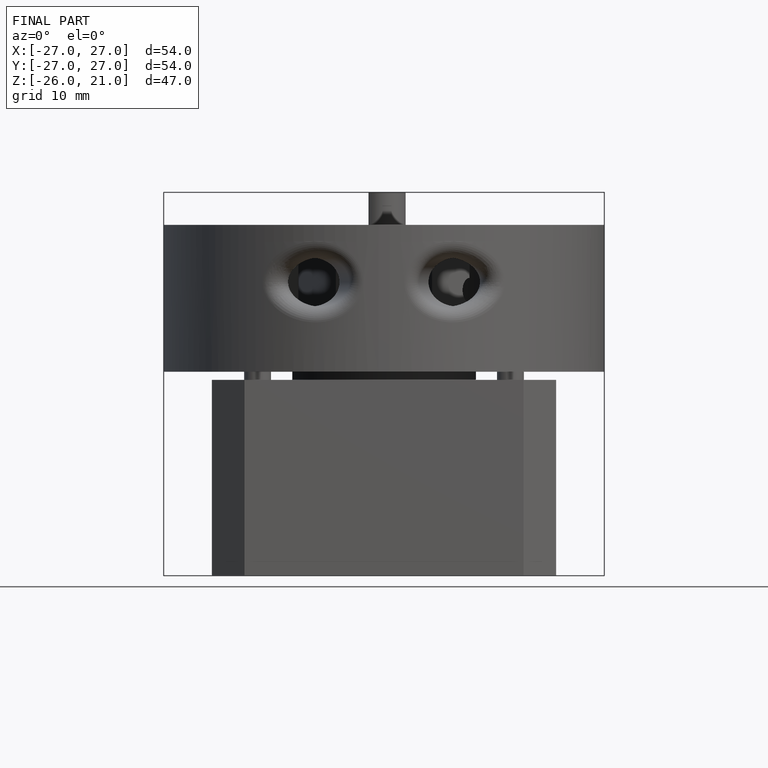
[diagram: finished part — front view with bounding-box wireframe]
